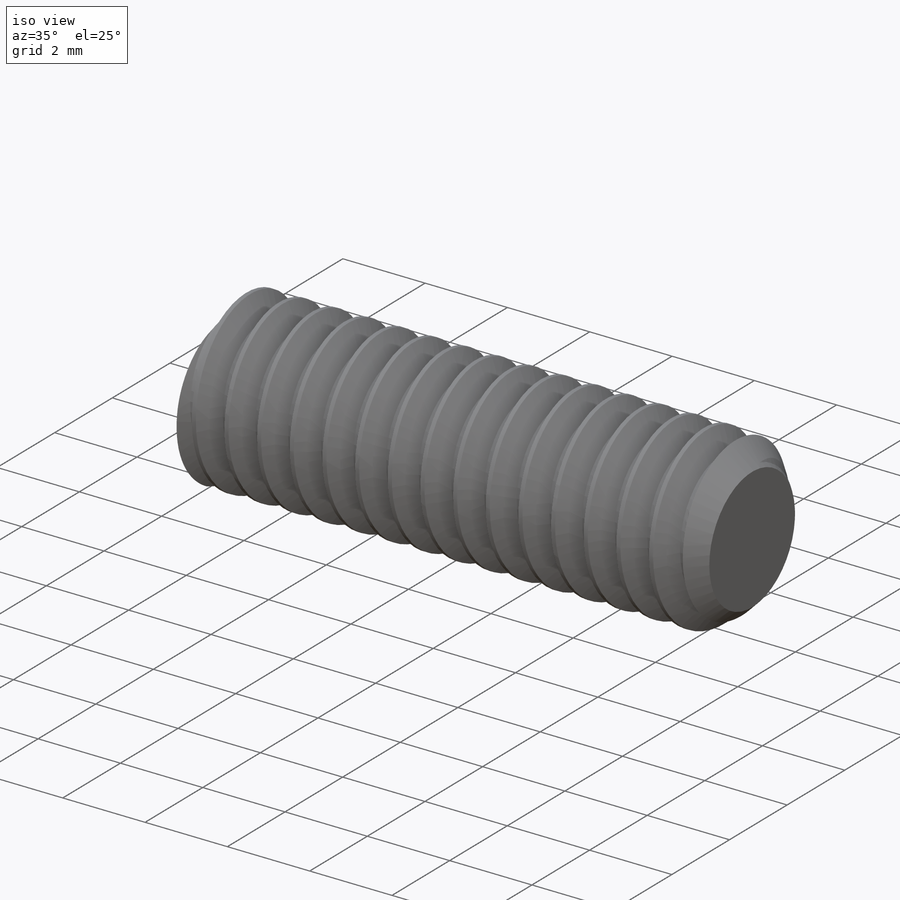
[diagram: iso view]
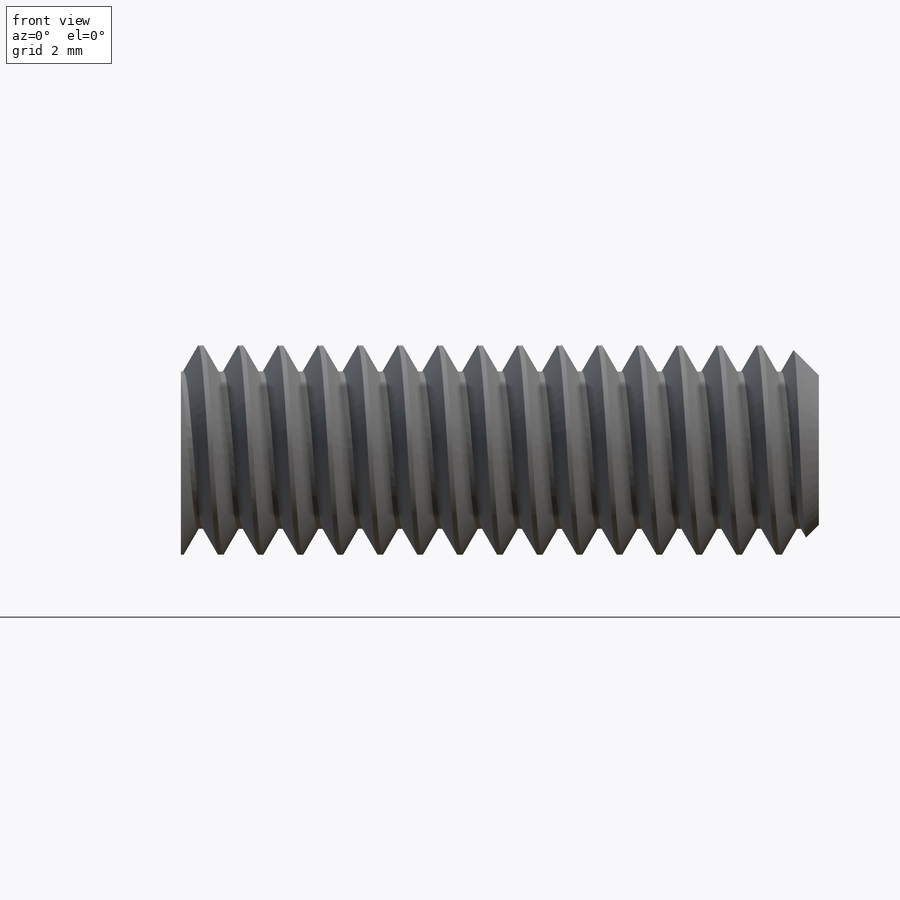
[diagram: front view]
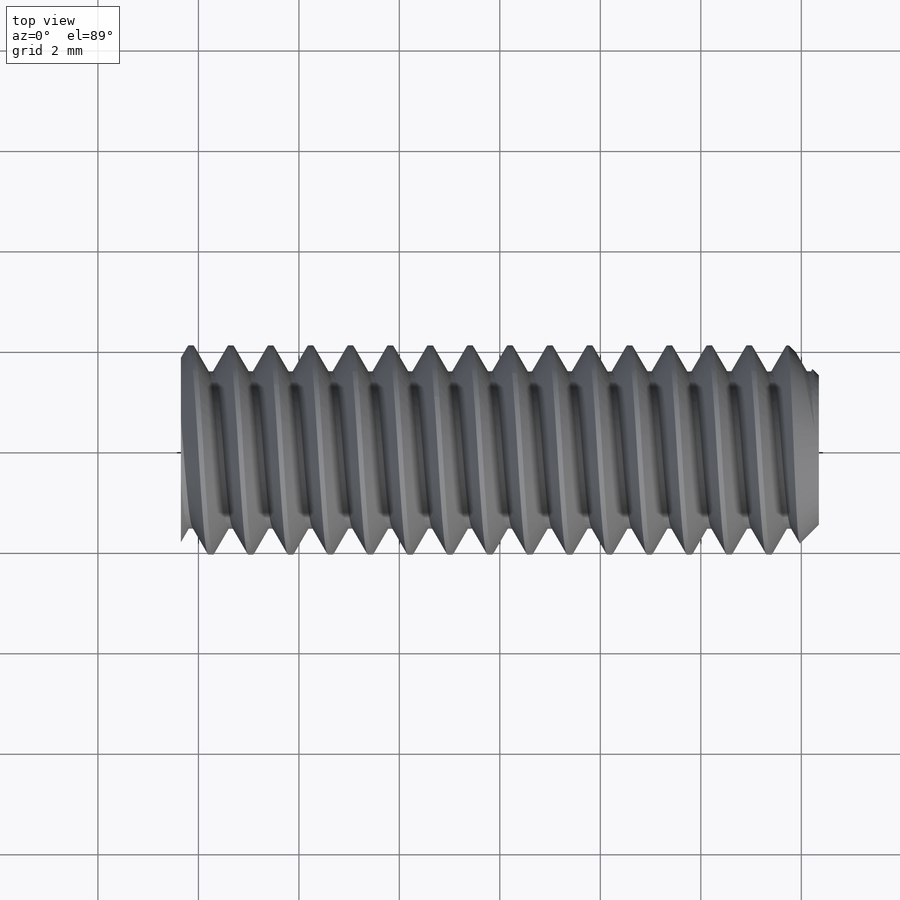
[diagram: top view]
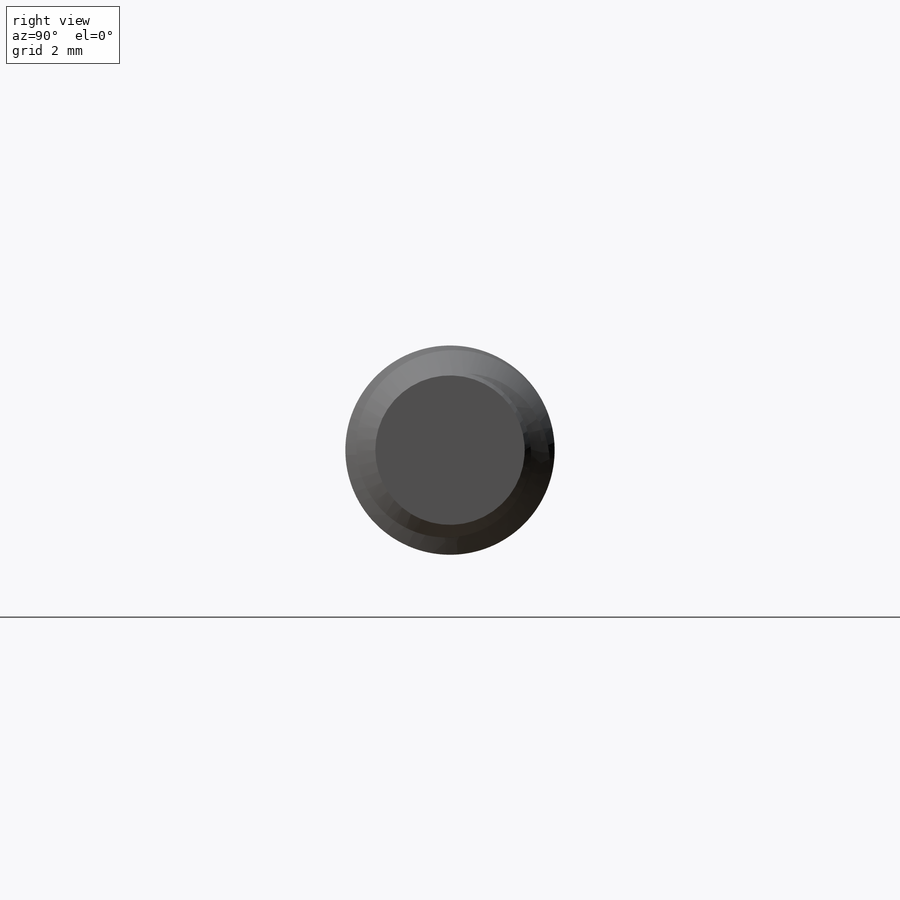
[diagram: right view]
SOLIDWORKS PART (.sldprt)
format: sldprt  version: not decoded by parser v0  size: 885,248 bytes
history: native  units: mm
features: sketch x7, plane x2, cut_extrude x2, material x1, extrude x1, helix x1, chamfer x1, sweep x1, revolve x1 (+13 scaffold rows collapsed)
feature tree (30):
  scaffold x13  (default folders/planes/origin — collapsed)
  material  "AISI 4340 Steel, normalized"
  sketch  "Sketch1"  dims[c1.D1=~5.889801mm c2.D1=45.0deg c2.Dec.=4.1656mm c2.Length=12.7mm c2.Head Dia=6.858mm c2.Head Height=~1.984375mm c2.Hex Depth=1.524mm c2.Chamfer=0.3556mm c2.D2=3.175mm]
  plane  "Plane1"
  plane  "Plane2"
  sketch  "Sketch2"
  extrude  "Boss-Extrude1"  [1 undecoded]
  sketch  "Sketch3"
  helix  "Helix/Spiral1"  Pitch=13.49375mm
  chamfer  "Chamfer1"  Distance=0.595313mm Angle=45deg
  sketch  "Sketch5"  dims[c1.D1=~0.495425mm c2.D1=60.0deg c2.D2=~0.396875mm c2.D3=~0.099219mm]
  sweep  "Cut-Sweep1"
  sketch  "Sketch4"  dims[Hex Size=~1.984375mm D1=6.858mm D2=~0.79375mm]
  sketch  "Sketch6"
  revolve  "Revolve1"  Angle=360deg
  cut_extrude  "Cut-Extrude1"  [1 undecoded]
  sketch  "Sketch8"
  cut_extrude  "Cut-Extrude2"  [1 undecoded]
decode coverage: 6 of 14 modeling features carry decoded parameters
note: ~ marks probable driven/reference dimensions
note: 3 parameter values undecoded
summary: no parameter record found for 3 features
note: suppression state not decoded; provenance and decode notes live in map.json
